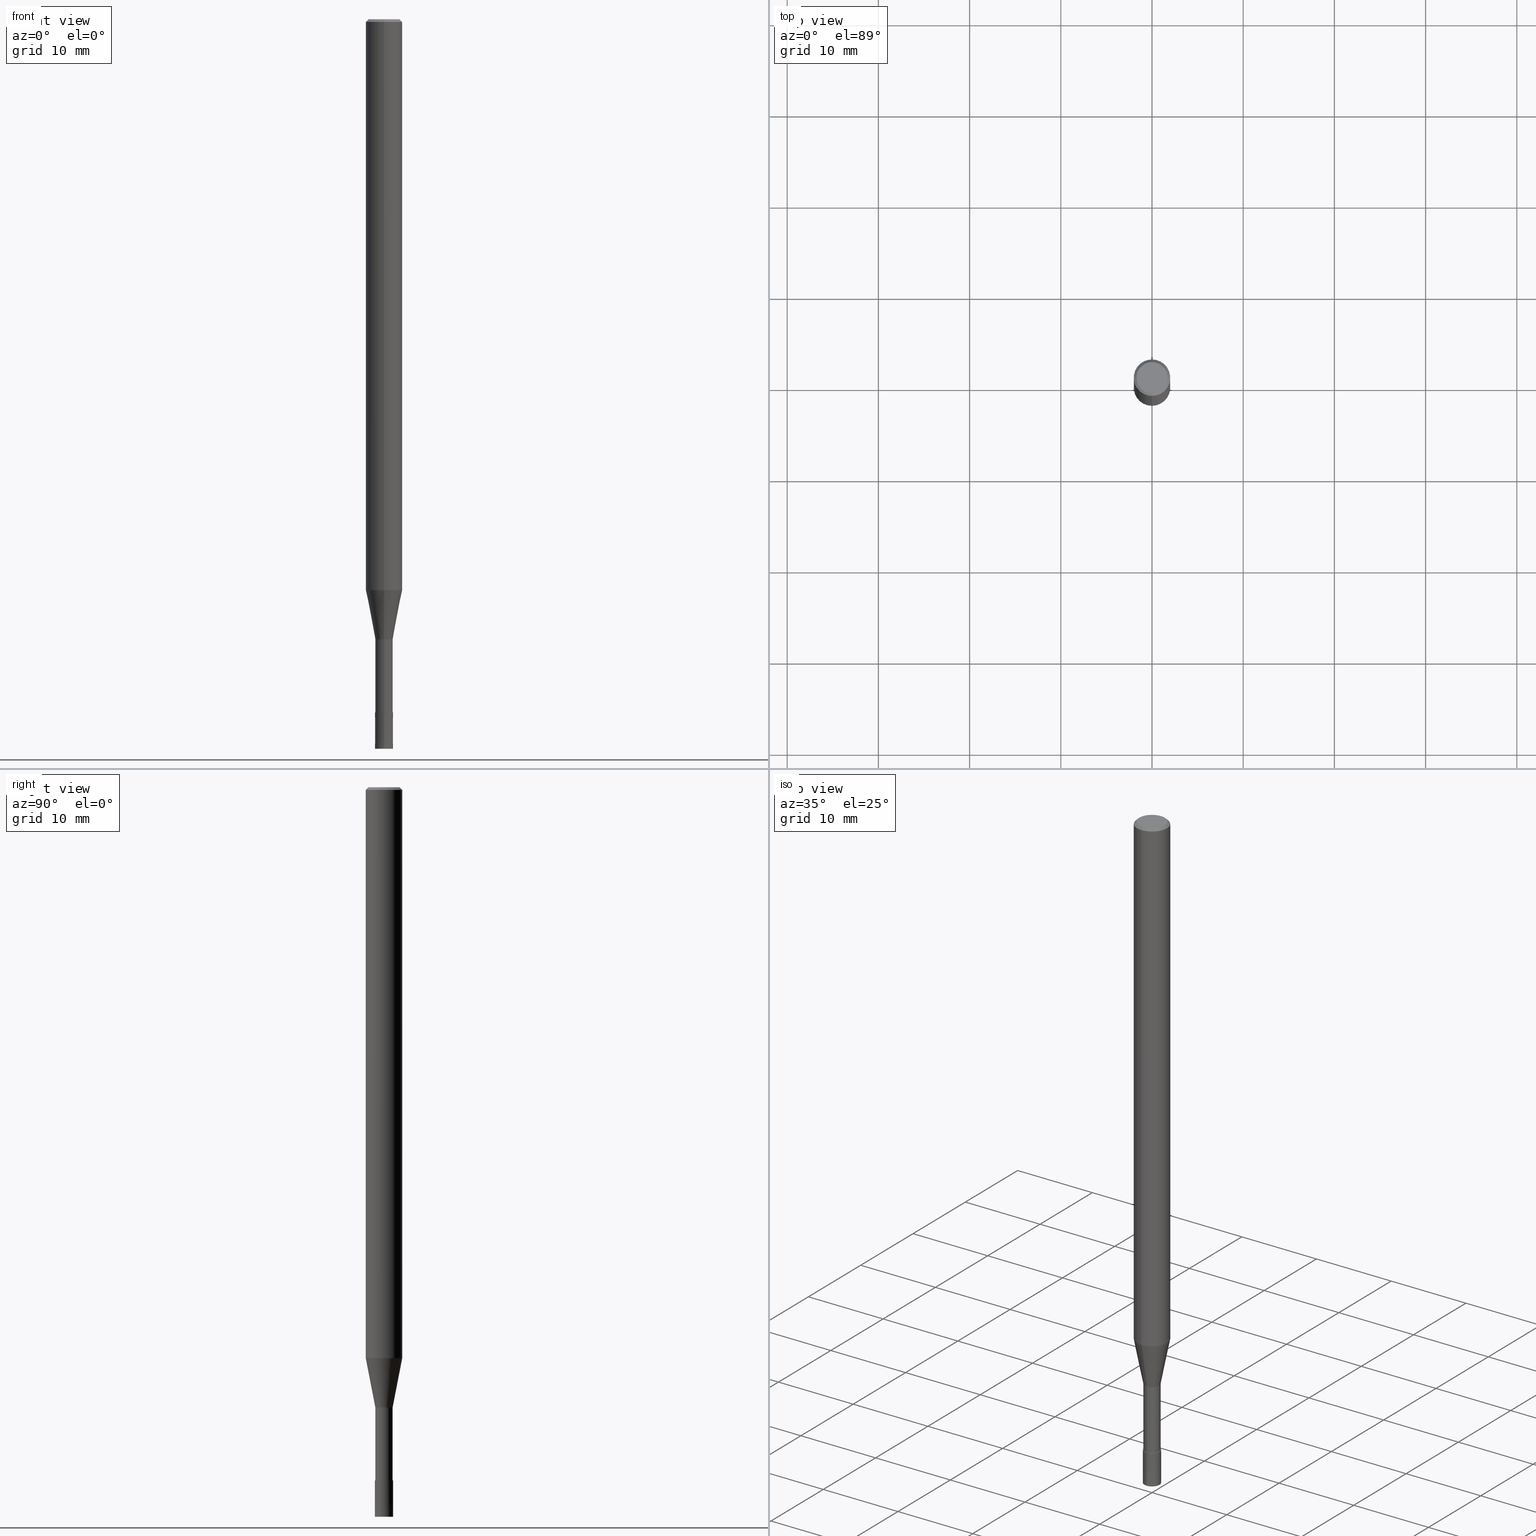
[diagram: canonical four-view strip — front | top / right | iso, engineering-drawing reading convention]
A machine part, canonical four-view strip (front | top / right | iso — engineering-drawing reading convention). The complete STEP part file that produces these views, byte-faithful:
ISO-10303-21;
HEADER;
FILE_DESCRIPTION(('no description'),'unknown implementation level');
FILE_NAME('CPRL2020-12-Huellk.stp','  ',('CIMSOURCE GmbH'),('CADClick - KiM GmbH - www.kimweb.de'),'unknown preprocess','ACIS','unknown authorization');
FILE_SCHEMA(('automotive_design'));
ENDSEC;
DATA;
#1=MECHANICAL_DESIGN_GEOMETRIC_PRESENTATION_REPRESENTATION(' ',(#14,#15,#16,#17,#18,#19,#20,#21,#22,#23,#24,#25,#26,#27,#28,#29,#30,#31,#32,#33,#34,#35,#36,#37,#38,#39,#40,#41,#42,#43,#44,#45,#46,#47,#48,#49,#50,#51,#52,#53,#54,#55,#56,#57,#58,#59,#60,#61,#62,#63,#64,#65,#66,#67,#68,#69,#70,#71,#72),#10);
#2=PRODUCT_DEFINITION_CONTEXT('',#73,'design');
#3=APPLICATION_PROTOCOL_DEFINITION('INTERNATIONAL STANDARD','automotive_design',1994,#73);
#4=PRODUCT_CATEGORY_RELATIONSHIP('NONE','NONE',#74,#75);
#5=SHAPE_DEFINITION_REPRESENTATION(#76,#77);
#6=PRODUCT_DEFINITION_CONTEXT('',#78,'design');
#7=APPLICATION_PROTOCOL_DEFINITION('INTERNATIONAL STANDARD','automotive_design',1994,#78);
#8=PRODUCT_CATEGORY_RELATIONSHIP('NONE','NONE',#79,#80);
#9=SHAPE_DEFINITION_REPRESENTATION(#81,#82);
#10= (GEOMETRIC_REPRESENTATION_CONTEXT(3)GLOBAL_UNCERTAINTY_ASSIGNED_CONTEXT((#85))GLOBAL_UNIT_ASSIGNED_CONTEXT((#87,#88,#89))REPRESENTATION_CONTEXT('NONE','WORKSPACE'));
#14=STYLED_ITEM('',(#91),#92);
#15=STYLED_ITEM('',(#93),#94);
#16=STYLED_ITEM('',(#95),#96);
#17=STYLED_ITEM('',(#97),#98);
#18=STYLED_ITEM('',(#99),#100);
#19=STYLED_ITEM('',(#101),#102);
#20=STYLED_ITEM('',(#103),#104);
#21=STYLED_ITEM('',(#105),#106);
#22=STYLED_ITEM('',(#107),#108);
#23=STYLED_ITEM('',(#109),#110);
#24=STYLED_ITEM('',(#111),#112);
#25=STYLED_ITEM('',(#113),#114);
#26=STYLED_ITEM('',(#115),#116);
#27=STYLED_ITEM('',(#117),#118);
#28=STYLED_ITEM('',(#119),#120);
#29=STYLED_ITEM('',(#121),#122);
#30=STYLED_ITEM('',(#123),#124);
#31=STYLED_ITEM('',(#125),#126);
#32=STYLED_ITEM('',(#127),#128);
#33=STYLED_ITEM('',(#129),#130);
#34=STYLED_ITEM('',(#131),#132);
#35=STYLED_ITEM('',(#133),#134);
#36=STYLED_ITEM('',(#135),#136);
#37=STYLED_ITEM('',(#137),#138);
#38=STYLED_ITEM('',(#139),#140);
#39=STYLED_ITEM('',(#141),#142);
#40=STYLED_ITEM('',(#143),#144);
#41=STYLED_ITEM('',(#145),#146);
#42=STYLED_ITEM('',(#147),#148);
#43=STYLED_ITEM('',(#149),#150);
#44=STYLED_ITEM('',(#151),#152);
#45=STYLED_ITEM('',(#153),#154);
#46=STYLED_ITEM('',(#155),#156);
#47=STYLED_ITEM('',(#157),#158);
#48=STYLED_ITEM('',(#159),#160);
#49=STYLED_ITEM('',(#161),#162);
#50=STYLED_ITEM('',(#163),#164);
#51=STYLED_ITEM('',(#165),#166);
#52=STYLED_ITEM('',(#167),#168);
#53=STYLED_ITEM('',(#169),#170);
#54=STYLED_ITEM('',(#171),#172);
#55=STYLED_ITEM('',(#173),#174);
#56=STYLED_ITEM('',(#175),#176);
#57=STYLED_ITEM('',(#177),#178);
#58=STYLED_ITEM('',(#179),#180);
#59=STYLED_ITEM('',(#181),#182);
#60=STYLED_ITEM('',(#183),#184);
#61=STYLED_ITEM('',(#185),#186);
#62=STYLED_ITEM('',(#187),#188);
#63=STYLED_ITEM('',(#189),#190);
#64=STYLED_ITEM('',(#191),#192);
#65=STYLED_ITEM('',(#193),#194);
#66=STYLED_ITEM('',(#195),#196);
#67=STYLED_ITEM('',(#197),#198);
#68=STYLED_ITEM('',(#199),#200);
#69=STYLED_ITEM('',(#201),#202);
#70=STYLED_ITEM('',(#203),#204);
#71=STYLED_ITEM('',(#205),#206);
#72=STYLED_ITEM('',(#207),#208);
#73=APPLICATION_CONTEXT(' ');
#74=PRODUCT_CATEGORY('part','NONE');
#75=PRODUCT_RELATED_PRODUCT_CATEGORY('detail',' ',(#209));
#76=PRODUCT_DEFINITION_SHAPE('NONE','NONE',#210);
#77=ADVANCED_BREP_SHAPE_REPRESENTATION('1',(#96,#211),#10);
#78=APPLICATION_CONTEXT(' ');
#79=PRODUCT_CATEGORY('part','NONE');
#80=PRODUCT_RELATED_PRODUCT_CATEGORY('detail',' ',(#212));
#81=PRODUCT_DEFINITION_SHAPE('NONE','NONE',#213);
#82=ADVANCED_BREP_SHAPE_REPRESENTATION('2',(#176,#214),#10);
#85=UNCERTAINTY_MEASURE_WITH_UNIT(LENGTH_MEASURE(1.0E-006),#87,'','');
#87= (CONVERSION_BASED_UNIT('MILLIMETRE',#217)LENGTH_UNIT()NAMED_UNIT(#220));
#88= (NAMED_UNIT(#222)PLANE_ANGLE_UNIT()SI_UNIT($,.RADIAN.));
#89= (NAMED_UNIT(#222)SOLID_ANGLE_UNIT()SI_UNIT($,.STERADIAN.));
#91=PRESENTATION_STYLE_ASSIGNMENT((#228));
#92=VERTEX_POINT('',#229);
#93=PRESENTATION_STYLE_ASSIGNMENT((#230));
#94=EDGE_CURVE('',#202,#170,#231,.T.);
#95=PRESENTATION_STYLE_ASSIGNMENT((#232));
#96=MANIFOLD_SOLID_BREP('1',#233);
#97=PRESENTATION_STYLE_ASSIGNMENT((#234));
#98=EDGE_CURVE('',#120,#146,#235,.T.);
#99=PRESENTATION_STYLE_ASSIGNMENT((#236));
#100=EDGE_CURVE('',#130,#150,#237,.T.);
#101=PRESENTATION_STYLE_ASSIGNMENT((#238));
#102=ADVANCED_FACE('',(#239,#240),#241,.T.);
#103=PRESENTATION_STYLE_ASSIGNMENT((#242));
#104=ADVANCED_FACE('',(#243),#244,.T.);
#105=PRESENTATION_STYLE_ASSIGNMENT((#245));
#106=EDGE_CURVE('',#112,#146,#246,.T.);
#107=PRESENTATION_STYLE_ASSIGNMENT((#247));
#108=EDGE_CURVE('',#112,#188,#248,.T.);
#109=PRESENTATION_STYLE_ASSIGNMENT((#249));
#110=EDGE_CURVE('',#92,#150,#250,.T.);
#111=PRESENTATION_STYLE_ASSIGNMENT((#251));
#112=VERTEX_POINT('',#252);
#113=PRESENTATION_STYLE_ASSIGNMENT((#253));
#114=VERTEX_POINT('',#254);
#115=PRESENTATION_STYLE_ASSIGNMENT((#255));
#116=VERTEX_POINT('',#256);
#117=PRESENTATION_STYLE_ASSIGNMENT((#257));
#118=EDGE_CURVE('',#146,#122,#258,.T.);
#119=PRESENTATION_STYLE_ASSIGNMENT((#259));
#120=VERTEX_POINT('',#260);
#121=PRESENTATION_STYLE_ASSIGNMENT((#261));
#122=VERTEX_POINT('',#262);
#123=PRESENTATION_STYLE_ASSIGNMENT((#263));
#124=EDGE_CURVE('',#116,#194,#264,.T.);
#125=PRESENTATION_STYLE_ASSIGNMENT((#265));
#126=EDGE_CURVE('',#120,#188,#266,.T.);
#127=PRESENTATION_STYLE_ASSIGNMENT((#267));
#128=ADVANCED_FACE('',(#268),#269,.T.);
#129=PRESENTATION_STYLE_ASSIGNMENT((#270));
#130=VERTEX_POINT('',#271);
#131=PRESENTATION_STYLE_ASSIGNMENT((#272));
#132=EDGE_CURVE('',#114,#120,#273,.T.);
#133=PRESENTATION_STYLE_ASSIGNMENT((#274));
#134=EDGE_CURVE('',#194,#202,#275,.T.);
#135=PRESENTATION_STYLE_ASSIGNMENT((#276));
#136=EDGE_CURVE('',#114,#122,#277,.T.);
#137=PRESENTATION_STYLE_ASSIGNMENT((#278));
#138=ADVANCED_FACE('',(#279),#280,.T.);
#139=PRESENTATION_STYLE_ASSIGNMENT((#281));
#140=ADVANCED_FACE('',(#282),#283,.T.);
#141=PRESENTATION_STYLE_ASSIGNMENT((#284));
#142=ADVANCED_FACE('',(#285),#286,.T.);
#143=PRESENTATION_STYLE_ASSIGNMENT((#287));
#144=ADVANCED_FACE('',(#288),#289,.T.);
#145=PRESENTATION_STYLE_ASSIGNMENT((#290));
#146=VERTEX_POINT('',#291);
#147=PRESENTATION_STYLE_ASSIGNMENT((#292));
#148=ADVANCED_FACE('',(#293),#294,.T.);
#149=PRESENTATION_STYLE_ASSIGNMENT((#295));
#150=VERTEX_POINT('',#296);
#151=PRESENTATION_STYLE_ASSIGNMENT((#297));
#152=EDGE_CURVE('',#168,#130,#298,.T.);
#153=PRESENTATION_STYLE_ASSIGNMENT((#299));
#154=EDGE_CURVE('',#170,#116,#300,.T.);
#155=PRESENTATION_STYLE_ASSIGNMENT((#301));
#156=ADVANCED_FACE('',(#302),#303,.T.);
#157=PRESENTATION_STYLE_ASSIGNMENT((#304));
#158=EDGE_CURVE('',#150,#184,#305,.T.);
#159=PRESENTATION_STYLE_ASSIGNMENT((#306));
#160=ADVANCED_FACE('',(#307),#308,.T.);
#161=PRESENTATION_STYLE_ASSIGNMENT((#309));
#162=EDGE_CURVE('',#168,#184,#310,.T.);
#163=PRESENTATION_STYLE_ASSIGNMENT((#311));
#164=ADVANCED_FACE('',(#312),#313,.T.);
#165=PRESENTATION_STYLE_ASSIGNMENT((#314));
#166=EDGE_CURVE('',#122,#114,#315,.T.);
#167=PRESENTATION_STYLE_ASSIGNMENT((#316));
#168=VERTEX_POINT('',#317);
#169=PRESENTATION_STYLE_ASSIGNMENT((#318));
#170=VERTEX_POINT('',#319);
#171=PRESENTATION_STYLE_ASSIGNMENT((#320));
#172=EDGE_CURVE('',#130,#180,#321,.T.);
#173=PRESENTATION_STYLE_ASSIGNMENT((#322));
#174=EDGE_CURVE('',#92,#180,#323,.T.);
#175=PRESENTATION_STYLE_ASSIGNMENT((#324));
#176=MANIFOLD_SOLID_BREP('2',#325);
#177=PRESENTATION_STYLE_ASSIGNMENT((#326));
#178=ADVANCED_FACE('',(#327),#328,.T.);
#179=PRESENTATION_STYLE_ASSIGNMENT((#329));
#180=VERTEX_POINT('',#330);
#181=PRESENTATION_STYLE_ASSIGNMENT((#331));
#182=EDGE_CURVE('',#146,#120,#332,.T.);
#183=PRESENTATION_STYLE_ASSIGNMENT((#333));
#184=VERTEX_POINT('',#334);
#185=PRESENTATION_STYLE_ASSIGNMENT((#335));
#186=EDGE_CURVE('',#150,#130,#336,.T.);
#187=PRESENTATION_STYLE_ASSIGNMENT((#337));
#188=VERTEX_POINT('',#338);
#189=PRESENTATION_STYLE_ASSIGNMENT((#339));
#190=EDGE_CURVE('',#180,#92,#340,.T.);
#191=PRESENTATION_STYLE_ASSIGNMENT((#341));
#192=ADVANCED_FACE('',(#342),#343,.T.);
#193=PRESENTATION_STYLE_ASSIGNMENT((#344));
#194=VERTEX_POINT('',#345);
#195=PRESENTATION_STYLE_ASSIGNMENT((#346));
#196=ADVANCED_FACE('',(#347),#348,.T.);
#197=PRESENTATION_STYLE_ASSIGNMENT((#349));
#198=EDGE_CURVE('',#188,#112,#350,.T.);
#199=PRESENTATION_STYLE_ASSIGNMENT((#351));
#200=EDGE_CURVE('',#184,#168,#352,.T.);
#201=PRESENTATION_STYLE_ASSIGNMENT((#353));
#202=VERTEX_POINT('',#354);
#203=PRESENTATION_STYLE_ASSIGNMENT((#355));
#204=EDGE_CURVE('',#194,#116,#356,.T.);
#205=PRESENTATION_STYLE_ASSIGNMENT((#357));
#206=ADVANCED_FACE('',(#358),#359,.T.);
#207=PRESENTATION_STYLE_ASSIGNMENT((#360));
#208=EDGE_CURVE('',#170,#202,#361,.T.);
#209=PRODUCT('1','1','PART-1-DESC',(#362));
#210=PRODUCT_DEFINITION('NONE','NONE',#363,#2);
#211=AXIS2_PLACEMENT_3D('',#364,#365,#366);
#212=PRODUCT('2','2','PART-2-DESC',(#367));
#213=PRODUCT_DEFINITION('NONE','NONE',#368,#6);
#214=AXIS2_PLACEMENT_3D('',#369,#370,#371);
#217=LENGTH_MEASURE_WITH_UNIT(LENGTH_MEASURE(1.0),#372);
#220=DIMENSIONAL_EXPONENTS(1.0,0.0,0.0,0.0,0.0,0.0,0.0);
#222=DIMENSIONAL_EXPONENTS(0.0,0.0,0.0,0.0,0.0,0.0,0.0);
#228=POINT_STYLE(' ',#373,POSITIVE_LENGTH_MEASURE(1.0E-006),#374);
#229=CARTESIAN_POINT('',(2.44921270764475E-016,-2.0,-62.598));
#230=CURVE_STYLE('',#375,POSITIVE_LENGTH_MEASURE(1.0E-006),#376);
#231=CIRCLE('',#377,0.9999);
#232=SURFACE_STYLE_USAGE(.BOTH.,#378);
#233=CLOSED_SHELL('',(#206,#144,#160,#140,#102,#196,#128,#164,#138,#104,#148));
#234=CURVE_STYLE('',#379,POSITIVE_LENGTH_MEASURE(1.0E-006),#380);
#235=CIRCLE('',#381,0.94995);
#236=CURVE_STYLE('',#382,POSITIVE_LENGTH_MEASURE(1.0E-006),#383);
#237=CIRCLE('',#384,2.0);
#238=SURFACE_STYLE_USAGE(.BOTH.,#385);
#239=FACE_OUTER_BOUND('',#386,.T.);
#240=FACE_BOUND('',#387,.T.);
#241=PLANE('',#388);
#242=SURFACE_STYLE_USAGE(.BOTH.,#389);
#243=FACE_OUTER_BOUND('',#390,.T.);
#244=CYLINDRICAL_SURFACE('',#391,0.94995);
#245=CURVE_STYLE('',#392,POSITIVE_LENGTH_MEASURE(1.0E-006),#393);
#246=LINE('',#394,#395);
#247=CURVE_STYLE('',#396,POSITIVE_LENGTH_MEASURE(1.0E-006),#397);
#248=CIRCLE('',#398,0.94995);
#249=CURVE_STYLE('',#399,POSITIVE_LENGTH_MEASURE(1.0E-006),#400);
#250=LINE('',#401,#402);
#251=POINT_STYLE(' ',#403,POSITIVE_LENGTH_MEASURE(1.0E-006),#404);
#252=CARTESIAN_POINT('',(1.16331480581357E-016,-0.94995,-76.0));
#253=POINT_STYLE(' ',#405,POSITIVE_LENGTH_MEASURE(1.0E-006),#406);
#254=CARTESIAN_POINT('',(0.0,1.99995,-62.598));
#255=POINT_STYLE(' ',#407,POSITIVE_LENGTH_MEASURE(1.0E-006),#408);
#256=CARTESIAN_POINT('',(0.0,1.0,-80.0));
#257=CURVE_STYLE('',#409,POSITIVE_LENGTH_MEASURE(1.0E-006),#410);
#258=LINE('',#411,#412);
#259=POINT_STYLE(' ',#413,POSITIVE_LENGTH_MEASURE(1.0E-006),#414);
#260=CARTESIAN_POINT('',(0.0,0.94995,-68.0));
#261=POINT_STYLE(' ',#415,POSITIVE_LENGTH_MEASURE(1.0E-006),#416);
#262=CARTESIAN_POINT('',(2.44915147732706E-016,-1.99995,-62.598));
#263=CURVE_STYLE('',#417,POSITIVE_LENGTH_MEASURE(1.0E-006),#418);
#264=CIRCLE('',#419,1.0);
#265=CURVE_STYLE('',#420,POSITIVE_LENGTH_MEASURE(1.0E-006),#421);
#266=LINE('',#422,#423);
#267=SURFACE_STYLE_USAGE(.BOTH.,#424);
#268=FACE_OUTER_BOUND('',#425,.T.);
#269=CONICAL_SURFACE('',#426,1.85,0.785398163397453);
#270=POINT_STYLE(' ',#427,POSITIVE_LENGTH_MEASURE(1.0E-006),#428);
#271=CARTESIAN_POINT('',(0.0,2.0,-0.299999999999997));
#272=CURVE_STYLE('',#429,POSITIVE_LENGTH_MEASURE(1.0E-006),#430);
#273=LINE('',#431,#432);
#274=CURVE_STYLE('',#433,POSITIVE_LENGTH_MEASURE(1.0E-006),#434);
#275=LINE('',#435,#436);
#276=CURVE_STYLE('',#437,POSITIVE_LENGTH_MEASURE(1.0E-006),#438);
#277=CIRCLE('',#439,1.99995);
#278=SURFACE_STYLE_USAGE(.BOTH.,#440);
#279=FACE_OUTER_BOUND('',#441,.T.);
#280=CONICAL_SURFACE('',#442,1.47495,0.191978649183841);
#281=SURFACE_STYLE_USAGE(.BOTH.,#443);
#282=FACE_OUTER_BOUND('',#444,.T.);
#283=CONICAL_SURFACE('',#445,1.85,0.785398163397453);
#284=SURFACE_STYLE_USAGE(.BOTH.,#446);
#285=FACE_OUTER_BOUND('',#447,.T.);
#286=CONICAL_SURFACE('',#448,0.99995,2.49999999947889E-005);
#287=SURFACE_STYLE_USAGE(.BOTH.,#449);
#288=FACE_OUTER_BOUND('',#450,.T.);
#289=CONICAL_SURFACE('',#451,1.47495,0.191978649183841);
#290=POINT_STYLE(' ',#452,POSITIVE_LENGTH_MEASURE(1.0E-006),#453);
#291=CARTESIAN_POINT('',(1.16331480581357E-016,-0.94995,-68.0));
#292=SURFACE_STYLE_USAGE(.BOTH.,#454);
#293=FACE_OUTER_BOUND('',#455,.T.);
#294=PLANE('',#456);
#295=POINT_STYLE(' ',#457,POSITIVE_LENGTH_MEASURE(1.0E-006),#458);
#296=CARTESIAN_POINT('',(2.44921270764475E-016,-2.0,-0.299999999999997));
#297=CURVE_STYLE('',#459,POSITIVE_LENGTH_MEASURE(1.0E-006),#460);
#298=LINE('',#461,#462);
#299=CURVE_STYLE('',#463,POSITIVE_LENGTH_MEASURE(1.0E-006),#464);
#300=LINE('',#465,#466);
#301=SURFACE_STYLE_USAGE(.BOTH.,#467);
#302=FACE_OUTER_BOUND('',#468,.T.);
#303=CONICAL_SURFACE('',#469,0.99995,2.49999999947889E-005);
#304=CURVE_STYLE('',#470,POSITIVE_LENGTH_MEASURE(1.0E-006),#471);
#305=LINE('',#472,#473);
#306=SURFACE_STYLE_USAGE(.BOTH.,#474);
#307=FACE_OUTER_BOUND('',#475,.T.);
#308=CYLINDRICAL_SURFACE('',#476,2.0);
#309=CURVE_STYLE('',#477,POSITIVE_LENGTH_MEASURE(1.0E-006),#478);
#310=CIRCLE('',#479,1.7);
#311=SURFACE_STYLE_USAGE(.BOTH.,#480);
#312=FACE_OUTER_BOUND('',#481,.T.);
#313=CYLINDRICAL_SURFACE('',#482,2.0);
#314=CURVE_STYLE('',#483,POSITIVE_LENGTH_MEASURE(1.0E-006),#484);
#315=CIRCLE('',#485,1.99995);
#316=POINT_STYLE(' ',#486,POSITIVE_LENGTH_MEASURE(1.0E-006),#487);
#317=CARTESIAN_POINT('',(0.0,1.7,0.0));
#318=POINT_STYLE(' ',#488,POSITIVE_LENGTH_MEASURE(1.0E-006),#489);
#319=CARTESIAN_POINT('',(0.0,0.9999,-76.0));
#320=CURVE_STYLE('',#490,POSITIVE_LENGTH_MEASURE(1.0E-006),#491);
#321=LINE('',#492,#493);
#322=CURVE_STYLE('',#494,POSITIVE_LENGTH_MEASURE(1.0E-006),#495);
#323=CIRCLE('',#496,2.0);
#324=SURFACE_STYLE_USAGE(.BOTH.,#497);
#325=CLOSED_SHELL('',(#156,#192,#142,#178));
#326=SURFACE_STYLE_USAGE(.BOTH.,#498);
#327=FACE_OUTER_BOUND('',#499,.T.);
#328=PLANE('',#500);
#329=POINT_STYLE(' ',#501,POSITIVE_LENGTH_MEASURE(1.0E-006),#502);
#330=CARTESIAN_POINT('',(0.0,2.0,-62.598));
#331=CURVE_STYLE('',#503,POSITIVE_LENGTH_MEASURE(1.0E-006),#504);
#332=CIRCLE('',#505,0.94995);
#333=POINT_STYLE(' ',#506,POSITIVE_LENGTH_MEASURE(1.0E-006),#507);
#334=CARTESIAN_POINT('',(2.08183080149804E-016,-1.7,0.0));
#335=CURVE_STYLE('',#508,POSITIVE_LENGTH_MEASURE(1.0E-006),#509);
#336=CIRCLE('',#510,2.0);
#337=POINT_STYLE(' ',#511,POSITIVE_LENGTH_MEASURE(1.0E-006),#512);
#338=CARTESIAN_POINT('',(0.0,0.94995,-76.0));
#339=CURVE_STYLE('',#513,POSITIVE_LENGTH_MEASURE(1.0E-006),#514);
#340=CIRCLE('',#515,2.0);
#341=SURFACE_STYLE_USAGE(.BOTH.,#516);
#342=FACE_OUTER_BOUND('',#517,.T.);
#343=PLANE('',#518);
#344=POINT_STYLE(' ',#519,POSITIVE_LENGTH_MEASURE(1.0E-006),#520);
#345=CARTESIAN_POINT('',(1.22460635382238E-016,-1.0,-80.0));
#346=SURFACE_STYLE_USAGE(.BOTH.,#521);
#347=FACE_OUTER_BOUND('',#522,.T.);
#348=PLANE('',#523);
#349=CURVE_STYLE('',#524,POSITIVE_LENGTH_MEASURE(1.0E-006),#525);
#350=CIRCLE('',#526,0.94995);
#351=CURVE_STYLE('',#527,POSITIVE_LENGTH_MEASURE(1.0E-006),#528);
#352=CIRCLE('',#529,1.7);
#353=POINT_STYLE(' ',#530,POSITIVE_LENGTH_MEASURE(1.0E-006),#531);
#354=CARTESIAN_POINT('',(1.224483893187E-016,-0.9999,-76.0));
#355=CURVE_STYLE('',#532,POSITIVE_LENGTH_MEASURE(1.0E-006),#533);
#356=CIRCLE('',#534,1.0);
#357=SURFACE_STYLE_USAGE(.BOTH.,#535);
#358=FACE_OUTER_BOUND('',#536,.T.);
#359=CYLINDRICAL_SURFACE('',#537,0.94995);
#360=CURVE_STYLE('',#538,POSITIVE_LENGTH_MEASURE(1.0E-006),#539);
#361=CIRCLE('',#540,0.9999);
#362=PRODUCT_CONTEXT('',#73,'mechanical');
#363=PRODUCT_DEFINITION_FORMATION_WITH_SPECIFIED_SOURCE(' ','NONE',#209,.NOT_KNOWN.);
#364=CARTESIAN_POINT('',(0.0,0.0,0.0));
#365=DIRECTION('',(0.0,0.0,1.0));
#366=DIRECTION('',(1.0,0.0,0.0));
#367=PRODUCT_CONTEXT('',#78,'mechanical');
#368=PRODUCT_DEFINITION_FORMATION_WITH_SPECIFIED_SOURCE(' ','NONE',#212,.NOT_KNOWN.);
#369=CARTESIAN_POINT('',(0.0,0.0,0.0));
#370=DIRECTION('',(0.0,0.0,1.0));
#371=DIRECTION('',(1.0,0.0,0.0));
#372= (NAMED_UNIT(#220)LENGTH_UNIT()SI_UNIT(.MILLI.,.METRE.));
#373=PRE_DEFINED_MARKER('');
#374=COLOUR_RGB('',0.498039215803146,0.498039215803146,0.498039215803146);
#375=DRAUGHTING_PRE_DEFINED_CURVE_FONT('continuous');
#376=COLOUR_RGB('',0.800000011920929,0.800000011920929,0.800000011920929);
#377=AXIS2_PLACEMENT_3D('',#542,#543,#544);
#378=SURFACE_SIDE_STYLE('',(#545));
#379=DRAUGHTING_PRE_DEFINED_CURVE_FONT('continuous');
#380=COLOUR_RGB('',0.498039215803146,0.498039215803146,0.498039215803146);
#381=AXIS2_PLACEMENT_3D('',#546,#547,#548);
#382=DRAUGHTING_PRE_DEFINED_CURVE_FONT('continuous');
#383=COLOUR_RGB('',0.498039215803146,0.498039215803146,0.498039215803146);
#384=AXIS2_PLACEMENT_3D('',#549,#550,#551);
#385=SURFACE_SIDE_STYLE('',(#552));
#386=EDGE_LOOP('',(#553,#554));
#387=EDGE_LOOP('',(#555,#556));
#388=AXIS2_PLACEMENT_3D('',#557,#558,#559);
#389=SURFACE_SIDE_STYLE('',(#560));
#390=EDGE_LOOP('',(#561,#562,#563,#564));
#391=AXIS2_PLACEMENT_3D('',#565,#566,#567);
#392=DRAUGHTING_PRE_DEFINED_CURVE_FONT('continuous');
#393=COLOUR_RGB('',0.498039215803146,0.498039215803146,0.498039215803146);
#394=CARTESIAN_POINT('',(1.16331480581357E-016,-0.94995,-72.0));
#395=VECTOR('',#568,1.0);
#396=DRAUGHTING_PRE_DEFINED_CURVE_FONT('continuous');
#397=COLOUR_RGB('',0.498039215803146,0.498039215803146,0.498039215803146);
#398=AXIS2_PLACEMENT_3D('',#569,#570,#571);
#399=DRAUGHTING_PRE_DEFINED_CURVE_FONT('continuous');
#400=COLOUR_RGB('',0.498039215803146,0.498039215803146,0.498039215803146);
#401=CARTESIAN_POINT('',(2.44921270764475E-016,-2.0,-31.449));
#402=VECTOR('',#572,1.0);
#403=PRE_DEFINED_MARKER('');
#404=COLOUR_RGB('',0.498039215803146,0.498039215803146,0.498039215803146);
#405=PRE_DEFINED_MARKER('');
#406=COLOUR_RGB('',0.498039215803146,0.498039215803146,0.498039215803146);
#407=PRE_DEFINED_MARKER('');
#408=COLOUR_RGB('',0.800000011920929,0.800000011920929,0.800000011920929);
#409=DRAUGHTING_PRE_DEFINED_CURVE_FONT('continuous');
#410=COLOUR_RGB('',0.498039215803146,0.498039215803146,0.498039215803146);
#411=CARTESIAN_POINT('',(1.80623314157031E-016,-1.47495,-65.299));
#412=VECTOR('',#573,1.0);
#413=PRE_DEFINED_MARKER('');
#414=COLOUR_RGB('',0.498039215803146,0.498039215803146,0.498039215803146);
#415=PRE_DEFINED_MARKER('');
#416=COLOUR_RGB('',0.498039215803146,0.498039215803146,0.498039215803146);
#417=DRAUGHTING_PRE_DEFINED_CURVE_FONT('continuous');
#418=COLOUR_RGB('',0.800000011920929,0.800000011920929,0.800000011920929);
#419=AXIS2_PLACEMENT_3D('',#574,#575,#576);
#420=DRAUGHTING_PRE_DEFINED_CURVE_FONT('continuous');
#421=COLOUR_RGB('',0.498039215803146,0.498039215803146,0.498039215803146);
#422=CARTESIAN_POINT('',(-1.16331480581357E-016,0.94995,-72.0));
#423=VECTOR('',#577,1.0);
#424=SURFACE_SIDE_STYLE('',(#578));
#425=EDGE_LOOP('',(#579,#580,#581,#582));
#426=AXIS2_PLACEMENT_3D('',#583,#584,#585);
#427=PRE_DEFINED_MARKER('');
#428=COLOUR_RGB('',0.498039215803146,0.498039215803146,0.498039215803146);
#429=DRAUGHTING_PRE_DEFINED_CURVE_FONT('continuous');
#430=COLOUR_RGB('',0.498039215803146,0.498039215803146,0.498039215803146);
#431=CARTESIAN_POINT('',(-1.80623314157032E-016,1.47495,-65.299));
#432=VECTOR('',#586,1.0);
#433=DRAUGHTING_PRE_DEFINED_CURVE_FONT('continuous');
#434=COLOUR_RGB('',0.800000011920929,0.800000011920929,0.800000011920929);
#435=CARTESIAN_POINT('',(1.22454512350469E-016,-0.99995,-78.0));
#436=VECTOR('',#587,1.0);
#437=DRAUGHTING_PRE_DEFINED_CURVE_FONT('continuous');
#438=COLOUR_RGB('',0.498039215803146,0.498039215803146,0.498039215803146);
#439=AXIS2_PLACEMENT_3D('',#588,#589,#590);
#440=SURFACE_SIDE_STYLE('',(#591));
#441=EDGE_LOOP('',(#592,#593,#594,#595));
#442=AXIS2_PLACEMENT_3D('',#596,#597,#598);
#443=SURFACE_SIDE_STYLE('',(#599));
#444=EDGE_LOOP('',(#600,#601,#602,#603));
#445=AXIS2_PLACEMENT_3D('',#604,#605,#606);
#446=SURFACE_SIDE_STYLE('',(#607));
#447=EDGE_LOOP('',(#608,#609,#610,#611));
#448=AXIS2_PLACEMENT_3D('',#612,#613,#614);
#449=SURFACE_SIDE_STYLE('',(#615));
#450=EDGE_LOOP('',(#616,#617,#618,#619));
#451=AXIS2_PLACEMENT_3D('',#620,#621,#622);
#452=PRE_DEFINED_MARKER('');
#453=COLOUR_RGB('',0.498039215803146,0.498039215803146,0.498039215803146);
#454=SURFACE_SIDE_STYLE('',(#623));
#455=EDGE_LOOP('',(#624,#625));
#456=AXIS2_PLACEMENT_3D('',#626,#627,#628);
#457=PRE_DEFINED_MARKER('');
#458=COLOUR_RGB('',0.498039215803146,0.498039215803146,0.498039215803146);
#459=DRAUGHTING_PRE_DEFINED_CURVE_FONT('continuous');
#460=COLOUR_RGB('',0.498039215803146,0.498039215803146,0.498039215803146);
#461=CARTESIAN_POINT('',(-2.2655217545714E-016,1.85,-0.149999999999999));
#462=VECTOR('',#629,1.0);
#463=DRAUGHTING_PRE_DEFINED_CURVE_FONT('continuous');
#464=COLOUR_RGB('',0.800000011920929,0.800000011920929,0.800000011920929);
#465=CARTESIAN_POINT('',(-1.22454512350469E-016,0.99995,-78.0));
#466=VECTOR('',#630,1.0);
#467=SURFACE_SIDE_STYLE('',(#631));
#468=EDGE_LOOP('',(#632,#633,#634,#635));
#469=AXIS2_PLACEMENT_3D('',#636,#637,#638);
#470=DRAUGHTING_PRE_DEFINED_CURVE_FONT('continuous');
#471=COLOUR_RGB('',0.498039215803146,0.498039215803146,0.498039215803146);
#472=CARTESIAN_POINT('',(2.2655217545714E-016,-1.85,-0.149999999999999));
#473=VECTOR('',#639,1.0);
#474=SURFACE_SIDE_STYLE('',(#640));
#475=EDGE_LOOP('',(#641,#642,#643,#644));
#476=AXIS2_PLACEMENT_3D('',#645,#646,#647);
#477=DRAUGHTING_PRE_DEFINED_CURVE_FONT('continuous');
#478=COLOUR_RGB('',0.498039215803146,0.498039215803146,0.498039215803146);
#479=AXIS2_PLACEMENT_3D('',#648,#649,#650);
#480=SURFACE_SIDE_STYLE('',(#651));
#481=EDGE_LOOP('',(#652,#653,#654,#655));
#482=AXIS2_PLACEMENT_3D('',#656,#657,#658);
#483=DRAUGHTING_PRE_DEFINED_CURVE_FONT('continuous');
#484=COLOUR_RGB('',0.498039215803146,0.498039215803146,0.498039215803146);
#485=AXIS2_PLACEMENT_3D('',#659,#660,#661);
#486=PRE_DEFINED_MARKER('');
#487=COLOUR_RGB('',0.498039215803146,0.498039215803146,0.498039215803146);
#488=PRE_DEFINED_MARKER('');
#489=COLOUR_RGB('',0.800000011920929,0.800000011920929,0.800000011920929);
#490=DRAUGHTING_PRE_DEFINED_CURVE_FONT('continuous');
#491=COLOUR_RGB('',0.498039215803146,0.498039215803146,0.498039215803146);
#492=CARTESIAN_POINT('',(-2.44921270764475E-016,2.0,-31.449));
#493=VECTOR('',#662,1.0);
#494=DRAUGHTING_PRE_DEFINED_CURVE_FONT('continuous');
#495=COLOUR_RGB('',0.498039215803146,0.498039215803146,0.498039215803146);
#496=AXIS2_PLACEMENT_3D('',#663,#664,#665);
#497=SURFACE_SIDE_STYLE('',(#666));
#498=SURFACE_SIDE_STYLE('',(#667));
#499=EDGE_LOOP('',(#668,#669));
#500=AXIS2_PLACEMENT_3D('',#670,#671,#672);
#501=PRE_DEFINED_MARKER('');
#502=COLOUR_RGB('',0.498039215803146,0.498039215803146,0.498039215803146);
#503=DRAUGHTING_PRE_DEFINED_CURVE_FONT('continuous');
#504=COLOUR_RGB('',0.498039215803146,0.498039215803146,0.498039215803146);
#505=AXIS2_PLACEMENT_3D('',#673,#674,#675);
#506=PRE_DEFINED_MARKER('');
#507=COLOUR_RGB('',0.498039215803146,0.498039215803146,0.498039215803146);
#508=DRAUGHTING_PRE_DEFINED_CURVE_FONT('continuous');
#509=COLOUR_RGB('',0.498039215803146,0.498039215803146,0.498039215803146);
#510=AXIS2_PLACEMENT_3D('',#676,#677,#678);
#511=PRE_DEFINED_MARKER('');
#512=COLOUR_RGB('',0.498039215803146,0.498039215803146,0.498039215803146);
#513=DRAUGHTING_PRE_DEFINED_CURVE_FONT('continuous');
#514=COLOUR_RGB('',0.498039215803146,0.498039215803146,0.498039215803146);
#515=AXIS2_PLACEMENT_3D('',#679,#680,#681);
#516=SURFACE_SIDE_STYLE('',(#682));
#517=EDGE_LOOP('',(#683,#684));
#518=AXIS2_PLACEMENT_3D('',#685,#686,#687);
#519=PRE_DEFINED_MARKER('');
#520=COLOUR_RGB('',0.800000011920929,0.800000011920929,0.800000011920929);
#521=SURFACE_SIDE_STYLE('',(#688));
#522=EDGE_LOOP('',(#689,#690));
#523=AXIS2_PLACEMENT_3D('',#691,#692,#693);
#524=DRAUGHTING_PRE_DEFINED_CURVE_FONT('continuous');
#525=COLOUR_RGB('',0.498039215803146,0.498039215803146,0.498039215803146);
#526=AXIS2_PLACEMENT_3D('',#694,#695,#696);
#527=DRAUGHTING_PRE_DEFINED_CURVE_FONT('continuous');
#528=COLOUR_RGB('',0.498039215803146,0.498039215803146,0.498039215803146);
#529=AXIS2_PLACEMENT_3D('',#697,#698,#699);
#530=PRE_DEFINED_MARKER('');
#531=COLOUR_RGB('',0.800000011920929,0.800000011920929,0.800000011920929);
#532=DRAUGHTING_PRE_DEFINED_CURVE_FONT('continuous');
#533=COLOUR_RGB('',0.800000011920929,0.800000011920929,0.800000011920929);
#534=AXIS2_PLACEMENT_3D('',#700,#701,#702);
#535=SURFACE_SIDE_STYLE('',(#703));
#536=EDGE_LOOP('',(#704,#705,#706,#707));
#537=AXIS2_PLACEMENT_3D('',#708,#709,#710);
#538=DRAUGHTING_PRE_DEFINED_CURVE_FONT('continuous');
#539=COLOUR_RGB('',0.800000011920929,0.800000011920929,0.800000011920929);
#540=AXIS2_PLACEMENT_3D('',#711,#712,#713);
#542=CARTESIAN_POINT('',(0.0,0.0,-76.0));
#543=DIRECTION('',(0.0,0.0,-1.0));
#544=DIRECTION('',(0.0,1.0,0.0));
#545=SURFACE_STYLE_FILL_AREA(#714);
#546=CARTESIAN_POINT('',(0.0,0.0,-68.0));
#547=DIRECTION('',(0.0,0.0,-1.0));
#548=DIRECTION('',(0.0,1.0,0.0));
#549=CARTESIAN_POINT('',(0.0,0.0,-0.299999999999997));
#550=DIRECTION('',(0.0,0.0,-1.0));
#551=DIRECTION('',(0.0,1.0,0.0));
#552=SURFACE_STYLE_FILL_AREA(#715);
#553=ORIENTED_EDGE('',*,*,#190,.T.);
#554=ORIENTED_EDGE('',*,*,#174,.T.);
#555=ORIENTED_EDGE('',*,*,#136,.F.);
#556=ORIENTED_EDGE('',*,*,#166,.F.);
#557=CARTESIAN_POINT('',(0.0,1.0,-62.598));
#558=DIRECTION('',(0.0,0.0,-1.0));
#559=DIRECTION('',(0.0,1.0,0.0));
#560=SURFACE_STYLE_FILL_AREA(#716);
#561=ORIENTED_EDGE('',*,*,#126,.T.);
#562=ORIENTED_EDGE('',*,*,#108,.F.);
#563=ORIENTED_EDGE('',*,*,#106,.T.);
#564=ORIENTED_EDGE('',*,*,#182,.T.);
#565=CARTESIAN_POINT('',(0.0,0.0,-72.0));
#566=DIRECTION('',(-0.0,-0.0,1.0));
#567=DIRECTION('',(0.0,1.0,0.0));
#568=DIRECTION('',(-0.0,-0.0,1.0));
#569=CARTESIAN_POINT('',(0.0,0.0,-76.0));
#570=DIRECTION('',(0.0,0.0,-1.0));
#571=DIRECTION('',(0.0,1.0,0.0));
#572=DIRECTION('',(-0.0,-0.0,1.0));
#573=DIRECTION('',(2.33656809909205E-017,-0.190801565890859,0.981628627564211));
#574=CARTESIAN_POINT('',(0.0,0.0,-80.0));
#575=DIRECTION('',(0.0,0.0,-1.0));
#576=DIRECTION('',(0.0,1.0,0.0));
#577=DIRECTION('',(0.0,0.0,-1.0));
#578=SURFACE_STYLE_FILL_AREA(#717);
#579=ORIENTED_EDGE('',*,*,#152,.T.);
#580=ORIENTED_EDGE('',*,*,#186,.F.);
#581=ORIENTED_EDGE('',*,*,#158,.T.);
#582=ORIENTED_EDGE('',*,*,#200,.T.);
#583=CARTESIAN_POINT('',(0.0,0.0,-0.149999999999999));
#584=DIRECTION('',(0.0,-0.0,-1.0));
#585=DIRECTION('',(0.0,1.0,0.0));
#586=DIRECTION('',(2.33656809909205E-017,-0.190801565890859,-0.981628627564211));
#587=DIRECTION('',(-3.06151588359888E-021,2.49999999921847E-005,0.9999999996875));
#588=CARTESIAN_POINT('',(0.0,0.0,-62.598));
#589=DIRECTION('',(0.0,0.0,-1.0));
#590=DIRECTION('',(0.0,1.0,0.0));
#591=SURFACE_STYLE_FILL_AREA(#718);
#592=ORIENTED_EDGE('',*,*,#132,.T.);
#593=ORIENTED_EDGE('',*,*,#182,.F.);
#594=ORIENTED_EDGE('',*,*,#118,.T.);
#595=ORIENTED_EDGE('',*,*,#166,.T.);
#596=CARTESIAN_POINT('',(0.0,0.0,-65.299));
#597=DIRECTION('',(-0.0,-0.0,1.0));
#598=DIRECTION('',(0.0,1.0,0.0));
#599=SURFACE_STYLE_FILL_AREA(#719);
#600=ORIENTED_EDGE('',*,*,#152,.F.);
#601=ORIENTED_EDGE('',*,*,#162,.T.);
#602=ORIENTED_EDGE('',*,*,#158,.F.);
#603=ORIENTED_EDGE('',*,*,#100,.F.);
#604=CARTESIAN_POINT('',(0.0,0.0,-0.149999999999999));
#605=DIRECTION('',(0.0,-0.0,-1.0));
#606=DIRECTION('',(0.0,1.0,0.0));
#607=SURFACE_STYLE_FILL_AREA(#720);
#608=ORIENTED_EDGE('',*,*,#154,.T.);
#609=ORIENTED_EDGE('',*,*,#204,.F.);
#610=ORIENTED_EDGE('',*,*,#134,.T.);
#611=ORIENTED_EDGE('',*,*,#94,.T.);
#612=CARTESIAN_POINT('',(0.0,0.0,-78.0));
#613=DIRECTION('',(0.0,-0.0,-1.0));
#614=DIRECTION('',(0.0,1.0,0.0));
#615=SURFACE_STYLE_FILL_AREA(#721);
#616=ORIENTED_EDGE('',*,*,#132,.F.);
#617=ORIENTED_EDGE('',*,*,#136,.T.);
#618=ORIENTED_EDGE('',*,*,#118,.F.);
#619=ORIENTED_EDGE('',*,*,#98,.F.);
#620=CARTESIAN_POINT('',(0.0,0.0,-65.299));
#621=DIRECTION('',(-0.0,-0.0,1.0));
#622=DIRECTION('',(0.0,1.0,0.0));
#623=SURFACE_STYLE_FILL_AREA(#722);
#624=ORIENTED_EDGE('',*,*,#198,.T.);
#625=ORIENTED_EDGE('',*,*,#108,.T.);
#626=CARTESIAN_POINT('',(0.0,0.474975,-76.0));
#627=DIRECTION('',(0.0,0.0,-1.0));
#628=DIRECTION('',(0.0,1.0,0.0));
#629=DIRECTION('',(-8.6592745707194E-017,0.707106781186551,-0.707106781186544));
#630=DIRECTION('',(-3.06151588359888E-021,2.49999999921847E-005,-0.9999999996875));
#631=SURFACE_STYLE_FILL_AREA(#723);
#632=ORIENTED_EDGE('',*,*,#154,.F.);
#633=ORIENTED_EDGE('',*,*,#208,.T.);
#634=ORIENTED_EDGE('',*,*,#134,.F.);
#635=ORIENTED_EDGE('',*,*,#124,.F.);
#636=CARTESIAN_POINT('',(0.0,0.0,-78.0));
#637=DIRECTION('',(0.0,-0.0,-1.0));
#638=DIRECTION('',(0.0,1.0,0.0));
#639=DIRECTION('',(-8.6592745707194E-017,0.707106781186551,0.707106781186544));
#640=SURFACE_STYLE_FILL_AREA(#724);
#641=ORIENTED_EDGE('',*,*,#172,.F.);
#642=ORIENTED_EDGE('',*,*,#100,.T.);
#643=ORIENTED_EDGE('',*,*,#110,.F.);
#644=ORIENTED_EDGE('',*,*,#190,.F.);
#645=CARTESIAN_POINT('',(0.0,0.0,-31.449));
#646=DIRECTION('',(-0.0,-0.0,1.0));
#647=DIRECTION('',(0.0,1.0,0.0));
#648=CARTESIAN_POINT('',(0.0,0.0,0.0));
#649=DIRECTION('',(0.0,0.0,-1.0));
#650=DIRECTION('',(0.0,1.0,0.0));
#651=SURFACE_STYLE_FILL_AREA(#725);
#652=ORIENTED_EDGE('',*,*,#172,.T.);
#653=ORIENTED_EDGE('',*,*,#174,.F.);
#654=ORIENTED_EDGE('',*,*,#110,.T.);
#655=ORIENTED_EDGE('',*,*,#186,.T.);
#656=CARTESIAN_POINT('',(0.0,0.0,-31.449));
#657=DIRECTION('',(-0.0,-0.0,1.0));
#658=DIRECTION('',(0.0,1.0,0.0));
#659=CARTESIAN_POINT('',(0.0,0.0,-62.598));
#660=DIRECTION('',(0.0,0.0,-1.0));
#661=DIRECTION('',(0.0,1.0,0.0));
#662=DIRECTION('',(0.0,0.0,-1.0));
#663=CARTESIAN_POINT('',(0.0,0.0,-62.598));
#664=DIRECTION('',(0.0,0.0,-1.0));
#665=DIRECTION('',(0.0,1.0,0.0));
#666=SURFACE_STYLE_FILL_AREA(#726);
#667=SURFACE_STYLE_FILL_AREA(#727);
#668=ORIENTED_EDGE('',*,*,#124,.T.);
#669=ORIENTED_EDGE('',*,*,#204,.T.);
#670=CARTESIAN_POINT('',(0.0,0.4975,-80.0));
#671=DIRECTION('',(0.0,0.0,-1.0));
#672=DIRECTION('',(0.0,1.0,0.0));
#673=CARTESIAN_POINT('',(0.0,0.0,-68.0));
#674=DIRECTION('',(0.0,0.0,-1.0));
#675=DIRECTION('',(0.0,1.0,0.0));
#676=CARTESIAN_POINT('',(0.0,0.0,-0.299999999999997));
#677=DIRECTION('',(0.0,0.0,-1.0));
#678=DIRECTION('',(0.0,1.0,0.0));
#679=CARTESIAN_POINT('',(0.0,0.0,-62.598));
#680=DIRECTION('',(0.0,0.0,-1.0));
#681=DIRECTION('',(0.0,1.0,0.0));
#682=SURFACE_STYLE_FILL_AREA(#728);
#683=ORIENTED_EDGE('',*,*,#208,.F.);
#684=ORIENTED_EDGE('',*,*,#94,.F.);
#685=CARTESIAN_POINT('',(0.0,0.49995,-76.0));
#686=DIRECTION('',(-0.0,0.0,1.0));
#687=DIRECTION('',(0.0,-1.0,0.0));
#688=SURFACE_STYLE_FILL_AREA(#729);
#689=ORIENTED_EDGE('',*,*,#162,.F.);
#690=ORIENTED_EDGE('',*,*,#200,.F.);
#691=CARTESIAN_POINT('',(0.0,0.85,0.0));
#692=DIRECTION('',(-0.0,0.0,1.0));
#693=DIRECTION('',(0.0,-1.0,0.0));
#694=CARTESIAN_POINT('',(0.0,0.0,-76.0));
#695=DIRECTION('',(0.0,0.0,-1.0));
#696=DIRECTION('',(0.0,1.0,0.0));
#697=CARTESIAN_POINT('',(0.0,0.0,0.0));
#698=DIRECTION('',(0.0,0.0,-1.0));
#699=DIRECTION('',(0.0,1.0,0.0));
#700=CARTESIAN_POINT('',(0.0,0.0,-80.0));
#701=DIRECTION('',(0.0,0.0,-1.0));
#702=DIRECTION('',(0.0,1.0,0.0));
#703=SURFACE_STYLE_FILL_AREA(#730);
#704=ORIENTED_EDGE('',*,*,#126,.F.);
#705=ORIENTED_EDGE('',*,*,#98,.T.);
#706=ORIENTED_EDGE('',*,*,#106,.F.);
#707=ORIENTED_EDGE('',*,*,#198,.F.);
#708=CARTESIAN_POINT('',(0.0,0.0,-72.0));
#709=DIRECTION('',(-0.0,-0.0,1.0));
#710=DIRECTION('',(0.0,1.0,0.0));
#711=CARTESIAN_POINT('',(0.0,0.0,-76.0));
#712=DIRECTION('',(0.0,0.0,-1.0));
#713=DIRECTION('',(0.0,1.0,0.0));
#714=FILL_AREA_STYLE('',(#731));
#715=FILL_AREA_STYLE('',(#732));
#716=FILL_AREA_STYLE('',(#733));
#717=FILL_AREA_STYLE('',(#734));
#718=FILL_AREA_STYLE('',(#735));
#719=FILL_AREA_STYLE('',(#736));
#720=FILL_AREA_STYLE('',(#737));
#721=FILL_AREA_STYLE('',(#738));
#722=FILL_AREA_STYLE('',(#739));
#723=FILL_AREA_STYLE('',(#740));
#724=FILL_AREA_STYLE('',(#741));
#725=FILL_AREA_STYLE('',(#742));
#726=FILL_AREA_STYLE('',(#743));
#727=FILL_AREA_STYLE('',(#744));
#728=FILL_AREA_STYLE('',(#745));
#729=FILL_AREA_STYLE('',(#746));
#730=FILL_AREA_STYLE('',(#747));
#731=FILL_AREA_STYLE_COLOUR('',#748);
#732=FILL_AREA_STYLE_COLOUR('',#749);
#733=FILL_AREA_STYLE_COLOUR('',#750);
#734=FILL_AREA_STYLE_COLOUR('',#751);
#735=FILL_AREA_STYLE_COLOUR('',#752);
#736=FILL_AREA_STYLE_COLOUR('',#753);
#737=FILL_AREA_STYLE_COLOUR('',#754);
#738=FILL_AREA_STYLE_COLOUR('',#755);
#739=FILL_AREA_STYLE_COLOUR('',#756);
#740=FILL_AREA_STYLE_COLOUR('',#757);
#741=FILL_AREA_STYLE_COLOUR('',#758);
#742=FILL_AREA_STYLE_COLOUR('',#759);
#743=FILL_AREA_STYLE_COLOUR('',#760);
#744=FILL_AREA_STYLE_COLOUR('',#761);
#745=FILL_AREA_STYLE_COLOUR('',#762);
#746=FILL_AREA_STYLE_COLOUR('',#763);
#747=FILL_AREA_STYLE_COLOUR('',#764);
#748=COLOUR_RGB('',0.498039215803146,0.498039215803146,0.498039215803146);
#749=COLOUR_RGB('',0.498039215803146,0.498039215803146,0.498039215803146);
#750=COLOUR_RGB('',0.498039215803146,0.498039215803146,0.498039215803146);
#751=COLOUR_RGB('',0.498039215803146,0.498039215803146,0.498039215803146);
#752=COLOUR_RGB('',0.498039215803146,0.498039215803146,0.498039215803146);
#753=COLOUR_RGB('',0.498039215803146,0.498039215803146,0.498039215803146);
#754=COLOUR_RGB('',0.800000011920929,0.800000011920929,0.800000011920929);
#755=COLOUR_RGB('',0.498039215803146,0.498039215803146,0.498039215803146);
#756=COLOUR_RGB('',0.498039215803146,0.498039215803146,0.498039215803146);
#757=COLOUR_RGB('',0.800000011920929,0.800000011920929,0.800000011920929);
#758=COLOUR_RGB('',0.498039215803146,0.498039215803146,0.498039215803146);
#759=COLOUR_RGB('',0.498039215803146,0.498039215803146,0.498039215803146);
#760=COLOUR_RGB('',0.800000011920929,0.800000011920929,0.800000011920929);
#761=COLOUR_RGB('',0.800000011920929,0.800000011920929,0.800000011920929);
#762=COLOUR_RGB('',0.800000011920929,0.800000011920929,0.800000011920929);
#763=COLOUR_RGB('',0.498039215803146,0.498039215803146,0.498039215803146);
#764=COLOUR_RGB('',0.498039215803146,0.498039215803146,0.498039215803146);
#765=AXIS2_PLACEMENT_3D('PCS',#766,#767,#768);
#766=CARTESIAN_POINT('',(0.0,0.0,0.0));
#767=DIRECTION('',(0.0,0.0,1.0));
#768=DIRECTION('',(1.0,0.0,0.0));
#769=AXIS2_PLACEMENT_3D('CIP',#770,#771,#772);
#770=CARTESIAN_POINT('',(0.0,0.0,-80.0));
#771=DIRECTION('',(0.0,0.0,1.0));
#772=DIRECTION('',(1.0,0.0,0.0));
#773=AXIS2_PLACEMENT_3D('CRP',#774,#775,#776);
#774=CARTESIAN_POINT('',(-1.0,0.0,-80.0));
#775=DIRECTION('',(0.0,0.0,1.0));
#776=DIRECTION('',(1.0,0.0,0.0));
#777=AXIS2_PLACEMENT_3D('MCS',#778,#779,#780);
#778=CARTESIAN_POINT('',(0.0,0.0,-62.598));
#779=DIRECTION('',(0.0,0.0,1.0));
#780=DIRECTION('',(1.0,0.0,0.0));
#781=CONSTRUCTIVE_GEOMETRY_REPRESENTATION_RELATIONSHIP('coordinate systems',$,#77,#782);
#782=CONSTRUCTIVE_GEOMETRY_REPRESENTATION('coordinate systems',(#765,#769,#773,#777),#10);
ENDSEC;
END-ISO-10303-21;
